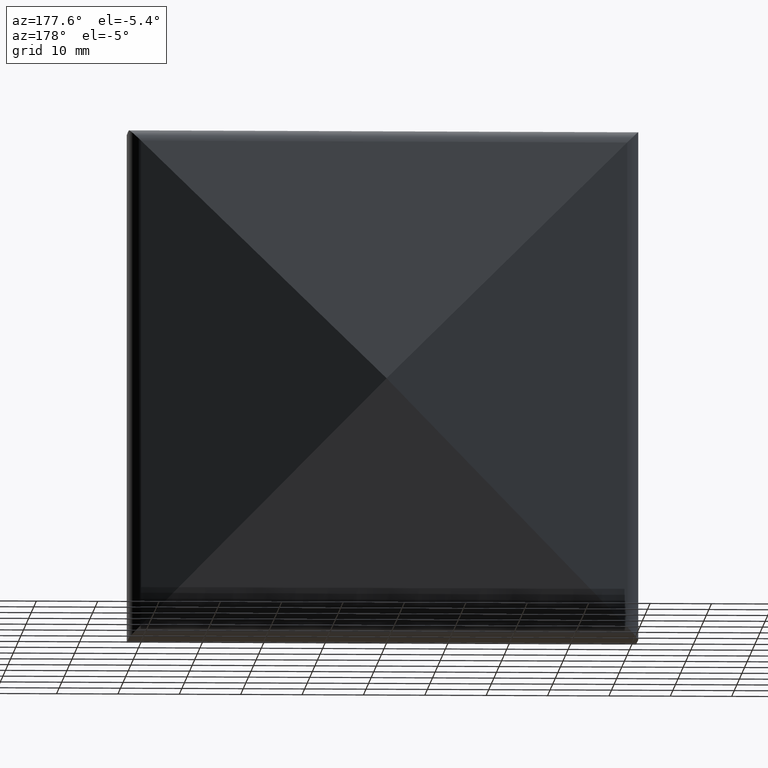
[diagram: clean part render]
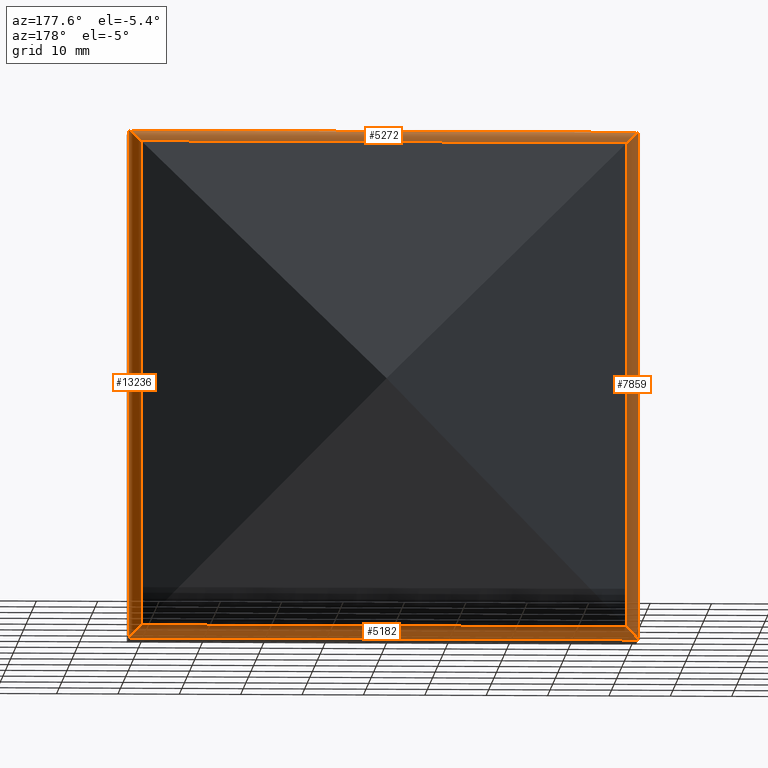
[diagram: same view with one multi-face feature highlighted, each face labeled with its STEP entity id]
A machine part, auxiliary view. The highlighted faces form ONE feature: a constant-radius fillet chain: 4 tangent blend faces with common blend radius 2.5 mm. The faces share edges in the B-rep.
Their STEP definitions:
[1] entity #5182 (Cylinder):
#521 = DIRECTION ( 'NONE',  ( 0.0000000000000000000, 0.0000000000000000000, -1.000000000000000000 ) ) ;
#549 = ORIENTED_EDGE ( 'NONE', *, *, #4330, .T. ) ;
#947 = EDGE_CURVE ( 'NONE', #13566, #11623, #1315, .T. ) ;
#1315 =( BOUNDED_CURVE ( )  B_SPLINE_CURVE ( 3, ( #9753, #7593, #10819, #10715 ),
 .UNSPECIFIED., .F., .F. ) 
 B_SPLINE_CURVE_WITH_KNOTS ( ( 4, 4 ),
 ( 3.141592653589793100, 4.475867618123492000 ),
 .UNSPECIFIED. ) 
 CURVE ( )  GEOMETRIC_REPRESENTATION_ITEM ( )  RATIONAL_B_SPLINE_CURVE ( ( 1.000000000000000000, 0.8570640236899820200, 0.8570640236899820200, 1.000000000000000000 ) ) 
 REPRESENTATION_ITEM ( '' )  );
#1970 = CARTESIAN_POINT ( 'NONE',  ( -41.50000000000004300, 10.46138374417017200, -39.58580565524131600 ) ) ;
#2084 = ORIENTED_EDGE ( 'NONE', *, *, #2369, .F. ) ;
#2224 = VERTEX_POINT ( 'NONE', #5475 ) ;
#2369 = EDGE_CURVE ( 'NONE', #13566, #3025, #10925, .T. ) ;
#2776 = CYLINDRICAL_SURFACE ( 'NONE', #7981, 2.500000000000002200 ) ;
#2825 = CARTESIAN_POINT ( 'NONE',  ( -39.58580565524133700, 10.46138374417017200, -39.58580565524131600 ) ) ;
#3025 = VERTEX_POINT ( 'NONE', #6599 ) ;
#4091 = CARTESIAN_POINT ( 'NONE',  ( 41.50000000000000000, 8.030986300481739400, -41.50000000000002100 ) ) ;
#4330 = EDGE_CURVE ( 'NONE', #2224, #3025, #9425, .T. ) ;
#4347 = EDGE_CURVE ( 'NONE', #11623, #2224, #6964, .T. ) ;
#5182 = ADVANCED_FACE ( 'NONE', ( #11964 ), #2776, .T. ) ;
#5287 = CARTESIAN_POINT ( 'NONE',  ( -41.50000000000004300, 8.030986300481739400, -41.49999999999997900 ) ) ;
#5475 = CARTESIAN_POINT ( 'NONE',  ( 39.58580565524141500, 10.46138374417017000, -39.58580565524135900 ) ) ;
#6307 = CARTESIAN_POINT ( 'NONE',  ( 39.58580565524141500, 10.46138374417017000, -39.58580565524135900 ) ) ;
#6599 = CARTESIAN_POINT ( 'NONE',  ( 41.50000000000000000, 8.030986300481739400, -41.50000000000002100 ) ) ;
#6884 = DIRECTION ( 'NONE',  ( 1.000000000000000000, -0.0000000000000000000, -4.440892098500625700E-016 ) ) ;
#6964 = LINE ( 'NONE', #1970, #13295 ) ;
#7226 = ORIENTED_EDGE ( 'NONE', *, *, #4347, .T. ) ;
#7593 = CARTESIAN_POINT ( 'NONE',  ( -41.50000000000001400, 9.234202017938352800, -41.49999999999997900 ) ) ;
#7981 = AXIS2_PLACEMENT_3D ( 'NONE', #13259, #6884, #521 ) ;
#9425 =( BOUNDED_CURVE ( )  B_SPLINE_CURVE ( 3, ( #6307, #9525, #11469, #4091 ),
 .UNSPECIFIED., .F., .F. ) 
 B_SPLINE_CURVE_WITH_KNOTS ( ( 4, 4 ),
 ( 1.807317689056111300, 3.141592653589793100 ),
 .UNSPECIFIED. ) 
 CURVE ( )  GEOMETRIC_REPRESENTATION_ITEM ( )  RATIONAL_B_SPLINE_CURVE ( ( 1.000000000000000000, 0.8570640236899855800, 0.8570640236899855800, 1.000000000000000000 ) ) 
 REPRESENTATION_ITEM ( '' )  );
#9525 = CARTESIAN_POINT ( 'NONE',  ( 40.75552261680627500, 10.17944351546561100, -40.75552261680629600 ) ) ;
#9753 = CARTESIAN_POINT ( 'NONE',  ( -41.50000000000004300, 8.030986300481739400, -41.49999999999997900 ) ) ;
#10552 = ORIENTED_EDGE ( 'NONE', *, *, #947, .T. ) ;
#10715 = CARTESIAN_POINT ( 'NONE',  ( -39.58580565524133700, 10.46138374417017200, -39.58580565524131600 ) ) ;
#10819 = CARTESIAN_POINT ( 'NONE',  ( -40.75552261680625300, 10.17944351546563600, -40.75552261680623900 ) ) ;
#10850 = CARTESIAN_POINT ( 'NONE',  ( -41.50000000000004300, 8.030986300481739400, -41.49999999999997900 ) ) ;
#10925 = LINE ( 'NONE', #5287, #11405 ) ;
#11405 = VECTOR ( 'NONE', #11754, 1000.000000000000000 ) ;
#11469 = CARTESIAN_POINT ( 'NONE',  ( 41.50000000000000000, 9.234202017938335100, -41.50000000000001400 ) ) ;
#11623 = VERTEX_POINT ( 'NONE', #2825 ) ;
#11714 = EDGE_LOOP ( 'NONE', ( #10552, #7226, #549, #2084 ) ) ;
#11754 = DIRECTION ( 'NONE',  ( 1.000000000000000000, -0.0000000000000000000, -4.440892098500625700E-016 ) ) ;
#11964 = FACE_OUTER_BOUND ( 'NONE', #11714, .T. ) ;
#13259 = CARTESIAN_POINT ( 'NONE',  ( -41.50000000000004300, 8.030986300481739400, -38.99999999999997900 ) ) ;
#13295 = VECTOR ( 'NONE', #13637, 1000.000000000000000 ) ;
#13566 = VERTEX_POINT ( 'NONE', #10850 ) ;
#13637 = DIRECTION ( 'NONE',  ( 1.000000000000000000, -0.0000000000000000000, -4.440892098500625700E-016 ) ) ;
[2] entity #13236 (Cylinder):
#480 = EDGE_CURVE ( 'NONE', #3025, #11215, #11634, .T. ) ;
#642 = VECTOR ( 'NONE', #12779, 1000.000000000000000 ) ;
#1642 = DIRECTION ( 'NONE',  ( 1.000000000000000000, 0.0000000000000000000, 0.0000000000000000000 ) ) ;
#1972 = ORIENTED_EDGE ( 'NONE', *, *, #9837, .T. ) ;
#2059 = ORIENTED_EDGE ( 'NONE', *, *, #6406, .F. ) ;
#2224 = VERTEX_POINT ( 'NONE', #5475 ) ;
#2243 = FACE_OUTER_BOUND ( 'NONE', #5586, .T. ) ;
#3025 = VERTEX_POINT ( 'NONE', #6599 ) ;
#3981 = AXIS2_PLACEMENT_3D ( 'NONE', #8007, #4739, #1642 ) ;
#4091 = CARTESIAN_POINT ( 'NONE',  ( 41.50000000000000000, 8.030986300481739400, -41.50000000000002100 ) ) ;
#4330 = EDGE_CURVE ( 'NONE', #2224, #3025, #9425, .T. ) ;
#4739 = DIRECTION ( 'NONE',  ( -0.0000000000000000000, -0.0000000000000000000, 1.000000000000000000 ) ) ;
#5075 = CARTESIAN_POINT ( 'NONE',  ( 40.75552261680626700, 10.17944351546562000, 40.75552261680625300 ) ) ;
#5125 = CARTESIAN_POINT ( 'NONE',  ( 41.50000000000000000, 9.234202017938340400, 41.49999999999997900 ) ) ;
#5475 = CARTESIAN_POINT ( 'NONE',  ( 39.58580565524141500, 10.46138374417017000, -39.58580565524135900 ) ) ;
#5586 = EDGE_LOOP ( 'NONE', ( #7374, #1972, #2059, #9256 ) ) ;
#5742 = CYLINDRICAL_SURFACE ( 'NONE', #3981, 2.500000000000002200 ) ;
#6002 = CARTESIAN_POINT ( 'NONE',  ( 39.58580565524138700, 10.46138374417017400, 39.58580565524133000 ) ) ;
#6307 = CARTESIAN_POINT ( 'NONE',  ( 39.58580565524141500, 10.46138374417017000, -39.58580565524135900 ) ) ;
#6406 = EDGE_CURVE ( 'NONE', #11215, #9751, #7683, .T. ) ;
#6599 = CARTESIAN_POINT ( 'NONE',  ( 41.50000000000000000, 8.030986300481739400, -41.50000000000002100 ) ) ;
#7374 = ORIENTED_EDGE ( 'NONE', *, *, #4330, .F. ) ;
#7683 =( BOUNDED_CURVE ( )  B_SPLINE_CURVE ( 3, ( #9283, #5125, #5075, #6002 ),
 .UNSPECIFIED., .F., .F. ) 
 B_SPLINE_CURVE_WITH_KNOTS ( ( 4, 4 ),
 ( 0.0000000000000000000, 1.334274964533686900 ),
 .UNSPECIFIED. ) 
 CURVE ( )  GEOMETRIC_REPRESENTATION_ITEM ( )  RATIONAL_B_SPLINE_CURVE ( ( 1.000000000000000000, 0.8570640236899845800, 0.8570640236899845800, 1.000000000000000000 ) ) 
 REPRESENTATION_ITEM ( '' )  );
#8007 = CARTESIAN_POINT ( 'NONE',  ( 39.00000000000000000, 8.030986300481739400, -41.49999999999999300 ) ) ;
#9256 = ORIENTED_EDGE ( 'NONE', *, *, #480, .F. ) ;
#9283 = CARTESIAN_POINT ( 'NONE',  ( 41.50000000000001400, 8.030986300481739400, 41.49999999999997200 ) ) ;
#9425 =( BOUNDED_CURVE ( )  B_SPLINE_CURVE ( 3, ( #6307, #9525, #11469, #4091 ),
 .UNSPECIFIED., .F., .F. ) 
 B_SPLINE_CURVE_WITH_KNOTS ( ( 4, 4 ),
 ( 1.807317689056111300, 3.141592653589793100 ),
 .UNSPECIFIED. ) 
 CURVE ( )  GEOMETRIC_REPRESENTATION_ITEM ( )  RATIONAL_B_SPLINE_CURVE ( ( 1.000000000000000000, 0.8570640236899855800, 0.8570640236899855800, 1.000000000000000000 ) ) 
 REPRESENTATION_ITEM ( '' )  );
#9525 = CARTESIAN_POINT ( 'NONE',  ( 40.75552261680627500, 10.17944351546561100, -40.75552261680629600 ) ) ;
#9751 = VERTEX_POINT ( 'NONE', #12059 ) ;
#9837 = EDGE_CURVE ( 'NONE', #2224, #9751, #12709, .T. ) ;
#10683 = CARTESIAN_POINT ( 'NONE',  ( 39.58580565524134400, 10.46138374417017400, -41.49999999999999300 ) ) ;
#10734 = VECTOR ( 'NONE', #10830, 1000.000000000000000 ) ;
#10830 = DIRECTION ( 'NONE',  ( -0.0000000000000000000, -0.0000000000000000000, 1.000000000000000000 ) ) ;
#10899 = CARTESIAN_POINT ( 'NONE',  ( 41.50000000000001400, 8.030986300481739400, 41.49999999999997200 ) ) ;
#11215 = VERTEX_POINT ( 'NONE', #10899 ) ;
#11469 = CARTESIAN_POINT ( 'NONE',  ( 41.50000000000000000, 9.234202017938335100, -41.50000000000001400 ) ) ;
#11634 = LINE ( 'NONE', #11832, #642 ) ;
#11832 = CARTESIAN_POINT ( 'NONE',  ( 41.49999999999999300, 8.030986300481739400, -41.49999999999999300 ) ) ;
#12059 = CARTESIAN_POINT ( 'NONE',  ( 39.58580565524138700, 10.46138374417017400, 39.58580565524133000 ) ) ;
#12709 = LINE ( 'NONE', #10683, #10734 ) ;
#12779 = DIRECTION ( 'NONE',  ( -0.0000000000000000000, -0.0000000000000000000, 1.000000000000000000 ) ) ;
#13236 = ADVANCED_FACE ( 'NONE', ( #2243 ), #5742, .T. ) ;
[3] entity #5272 (Cylinder):
#325 = CARTESIAN_POINT ( 'NONE',  ( -41.50000000000000000, 9.234202017938349300, 41.50000000000001400 ) ) ;
#595 = EDGE_CURVE ( 'NONE', #2424, #11215, #802, .T. ) ;
#802 = LINE ( 'NONE', #10770, #3446 ) ;
#987 = FACE_OUTER_BOUND ( 'NONE', #12617, .T. ) ;
#1775 = DIRECTION ( 'NONE',  ( 1.000000000000000000, -0.0000000000000000000, -4.440892098500625700E-016 ) ) ;
#1980 =( BOUNDED_CURVE ( )  B_SPLINE_CURVE ( 3, ( #2377, #9910, #325, #10870 ),
 .UNSPECIFIED., .F., .F. ) 
 B_SPLINE_CURVE_WITH_KNOTS ( ( 4, 4 ),
 ( 4.948910342645890000, 6.283185307179586200 ),
 .UNSPECIFIED. ) 
 CURVE ( )  GEOMETRIC_REPRESENTATION_ITEM ( )  RATIONAL_B_SPLINE_CURVE ( ( 1.000000000000000000, 0.8570640236899826900, 0.8570640236899826900, 1.000000000000000000 ) ) 
 REPRESENTATION_ITEM ( '' )  );
#2235 = EDGE_CURVE ( 'NONE', #3667, #2424, #1980, .T. ) ;
#2377 = CARTESIAN_POINT ( 'NONE',  ( -39.58580565524133700, 10.46138374417017400, 39.58580565524136600 ) ) ;
#2424 = VERTEX_POINT ( 'NONE', #13790 ) ;
#3446 = VECTOR ( 'NONE', #8705, 1000.000000000000000 ) ;
#3667 = VERTEX_POINT ( 'NONE', #10227 ) ;
#3752 = CARTESIAN_POINT ( 'NONE',  ( -41.50000000000002800, 10.46138374417017400, 39.58580565524136600 ) ) ;
#4721 = VECTOR ( 'NONE', #4825, 1000.000000000000000 ) ;
#4825 = DIRECTION ( 'NONE',  ( 1.000000000000000000, -0.0000000000000000000, -4.440892098500625700E-016 ) ) ;
#5075 = CARTESIAN_POINT ( 'NONE',  ( 40.75552261680626700, 10.17944351546562000, 40.75552261680625300 ) ) ;
#5125 = CARTESIAN_POINT ( 'NONE',  ( 41.50000000000000000, 9.234202017938340400, 41.49999999999997900 ) ) ;
#5135 = CYLINDRICAL_SURFACE ( 'NONE', #5764, 2.500000000000002200 ) ;
#5272 = ADVANCED_FACE ( 'NONE', ( #987 ), #5135, .T. ) ;
#5585 = ORIENTED_EDGE ( 'NONE', *, *, #6406, .T. ) ;
#5764 = AXIS2_PLACEMENT_3D ( 'NONE', #8135, #1775, #8217 ) ;
#6002 = CARTESIAN_POINT ( 'NONE',  ( 39.58580565524138700, 10.46138374417017400, 39.58580565524133000 ) ) ;
#6293 = ORIENTED_EDGE ( 'NONE', *, *, #2235, .T. ) ;
#6406 = EDGE_CURVE ( 'NONE', #11215, #9751, #7683, .T. ) ;
#7362 = ORIENTED_EDGE ( 'NONE', *, *, #595, .T. ) ;
#7683 =( BOUNDED_CURVE ( )  B_SPLINE_CURVE ( 3, ( #9283, #5125, #5075, #6002 ),
 .UNSPECIFIED., .F., .F. ) 
 B_SPLINE_CURVE_WITH_KNOTS ( ( 4, 4 ),
 ( 0.0000000000000000000, 1.334274964533686900 ),
 .UNSPECIFIED. ) 
 CURVE ( )  GEOMETRIC_REPRESENTATION_ITEM ( )  RATIONAL_B_SPLINE_CURVE ( ( 1.000000000000000000, 0.8570640236899845800, 0.8570640236899845800, 1.000000000000000000 ) ) 
 REPRESENTATION_ITEM ( '' )  );
#8135 = CARTESIAN_POINT ( 'NONE',  ( -41.50000000000002800, 8.030986300481739400, 39.00000000000002100 ) ) ;
#8217 = DIRECTION ( 'NONE',  ( 0.0000000000000000000, 0.0000000000000000000, -1.000000000000000000 ) ) ;
#8281 = ORIENTED_EDGE ( 'NONE', *, *, #13260, .F. ) ;
#8705 = DIRECTION ( 'NONE',  ( 1.000000000000000000, -0.0000000000000000000, -4.440892098500625700E-016 ) ) ;
#9072 = LINE ( 'NONE', #3752, #4721 ) ;
#9283 = CARTESIAN_POINT ( 'NONE',  ( 41.50000000000001400, 8.030986300481739400, 41.49999999999997200 ) ) ;
#9751 = VERTEX_POINT ( 'NONE', #12059 ) ;
#9910 = CARTESIAN_POINT ( 'NONE',  ( -40.75552261680624600, 10.17944351546563200, 40.75552261680627500 ) ) ;
#10227 = CARTESIAN_POINT ( 'NONE',  ( -39.58580565524133700, 10.46138374417017400, 39.58580565524136600 ) ) ;
#10770 = CARTESIAN_POINT ( 'NONE',  ( -41.50000000000002800, 8.030986300481739400, 41.50000000000001400 ) ) ;
#10870 = CARTESIAN_POINT ( 'NONE',  ( -41.50000000000002800, 8.030986300481739400, 41.50000000000001400 ) ) ;
#10899 = CARTESIAN_POINT ( 'NONE',  ( 41.50000000000001400, 8.030986300481739400, 41.49999999999997200 ) ) ;
#11215 = VERTEX_POINT ( 'NONE', #10899 ) ;
#12059 = CARTESIAN_POINT ( 'NONE',  ( 39.58580565524138700, 10.46138374417017400, 39.58580565524133000 ) ) ;
#12617 = EDGE_LOOP ( 'NONE', ( #6293, #7362, #5585, #8281 ) ) ;
#13260 = EDGE_CURVE ( 'NONE', #3667, #9751, #9072, .T. ) ;
#13790 = CARTESIAN_POINT ( 'NONE',  ( -41.50000000000002800, 8.030986300481739400, 41.50000000000001400 ) ) ;
[4] entity #7859 (Cylinder):
#47 = CARTESIAN_POINT ( 'NONE',  ( -39.00000000000000000, 8.030986300481739400, -41.49999999999999300 ) ) ;
#325 = CARTESIAN_POINT ( 'NONE',  ( -41.50000000000000000, 9.234202017938349300, 41.50000000000001400 ) ) ;
#947 = EDGE_CURVE ( 'NONE', #13566, #11623, #1315, .T. ) ;
#1315 =( BOUNDED_CURVE ( )  B_SPLINE_CURVE ( 3, ( #9753, #7593, #10819, #10715 ),
 .UNSPECIFIED., .F., .F. ) 
 B_SPLINE_CURVE_WITH_KNOTS ( ( 4, 4 ),
 ( 3.141592653589793100, 4.475867618123492000 ),
 .UNSPECIFIED. ) 
 CURVE ( )  GEOMETRIC_REPRESENTATION_ITEM ( )  RATIONAL_B_SPLINE_CURVE ( ( 1.000000000000000000, 0.8570640236899820200, 0.8570640236899820200, 1.000000000000000000 ) ) 
 REPRESENTATION_ITEM ( '' )  );
#1980 =( BOUNDED_CURVE ( )  B_SPLINE_CURVE ( 3, ( #2377, #9910, #325, #10870 ),
 .UNSPECIFIED., .F., .F. ) 
 B_SPLINE_CURVE_WITH_KNOTS ( ( 4, 4 ),
 ( 4.948910342645890000, 6.283185307179586200 ),
 .UNSPECIFIED. ) 
 CURVE ( )  GEOMETRIC_REPRESENTATION_ITEM ( )  RATIONAL_B_SPLINE_CURVE ( ( 1.000000000000000000, 0.8570640236899826900, 0.8570640236899826900, 1.000000000000000000 ) ) 
 REPRESENTATION_ITEM ( '' )  );
#2189 = DIRECTION ( 'NONE',  ( -0.0000000000000000000, -0.0000000000000000000, 1.000000000000000000 ) ) ;
#2235 = EDGE_CURVE ( 'NONE', #3667, #2424, #1980, .T. ) ;
#2377 = CARTESIAN_POINT ( 'NONE',  ( -39.58580565524133700, 10.46138374417017400, 39.58580565524136600 ) ) ;
#2424 = VERTEX_POINT ( 'NONE', #13790 ) ;
#2825 = CARTESIAN_POINT ( 'NONE',  ( -39.58580565524133700, 10.46138374417017200, -39.58580565524131600 ) ) ;
#3120 = EDGE_CURVE ( 'NONE', #13566, #2424, #9762, .T. ) ;
#3240 = EDGE_CURVE ( 'NONE', #11623, #3667, #11569, .T. ) ;
#3522 = ORIENTED_EDGE ( 'NONE', *, *, #3240, .F. ) ;
#3667 = VERTEX_POINT ( 'NONE', #10227 ) ;
#5596 = CARTESIAN_POINT ( 'NONE',  ( -39.58580565524133700, 10.46138374417017200, -41.49999999999999300 ) ) ;
#6363 = ORIENTED_EDGE ( 'NONE', *, *, #2235, .F. ) ;
#6564 = DIRECTION ( 'NONE',  ( -0.0000000000000000000, -0.0000000000000000000, 1.000000000000000000 ) ) ;
#6573 = VECTOR ( 'NONE', #2189, 1000.000000000000000 ) ;
#6604 = ORIENTED_EDGE ( 'NONE', *, *, #3120, .T. ) ;
#7215 = EDGE_LOOP ( 'NONE', ( #7230, #6604, #6363, #3522 ) ) ;
#7230 = ORIENTED_EDGE ( 'NONE', *, *, #947, .F. ) ;
#7593 = CARTESIAN_POINT ( 'NONE',  ( -41.50000000000001400, 9.234202017938352800, -41.49999999999997900 ) ) ;
#7859 = ADVANCED_FACE ( 'NONE', ( #8935 ), #9455, .T. ) ;
#8393 = VECTOR ( 'NONE', #6564, 1000.000000000000000 ) ;
#8935 = FACE_OUTER_BOUND ( 'NONE', #7215, .T. ) ;
#9455 = CYLINDRICAL_SURFACE ( 'NONE', #11203, 2.500000000000002200 ) ;
#9649 = DIRECTION ( 'NONE',  ( -0.0000000000000000000, -0.0000000000000000000, 1.000000000000000000 ) ) ;
#9705 = CARTESIAN_POINT ( 'NONE',  ( -41.50000000000000000, 8.030986300481739400, -41.49999999999999300 ) ) ;
#9753 = CARTESIAN_POINT ( 'NONE',  ( -41.50000000000004300, 8.030986300481739400, -41.49999999999997900 ) ) ;
#9762 = LINE ( 'NONE', #9705, #6573 ) ;
#9910 = CARTESIAN_POINT ( 'NONE',  ( -40.75552261680624600, 10.17944351546563200, 40.75552261680627500 ) ) ;
#10227 = CARTESIAN_POINT ( 'NONE',  ( -39.58580565524133700, 10.46138374417017400, 39.58580565524136600 ) ) ;
#10715 = CARTESIAN_POINT ( 'NONE',  ( -39.58580565524133700, 10.46138374417017200, -39.58580565524131600 ) ) ;
#10819 = CARTESIAN_POINT ( 'NONE',  ( -40.75552261680625300, 10.17944351546563600, -40.75552261680623900 ) ) ;
#10850 = CARTESIAN_POINT ( 'NONE',  ( -41.50000000000004300, 8.030986300481739400, -41.49999999999997900 ) ) ;
#10870 = CARTESIAN_POINT ( 'NONE',  ( -41.50000000000002800, 8.030986300481739400, 41.50000000000001400 ) ) ;
#11203 = AXIS2_PLACEMENT_3D ( 'NONE', #47, #9649, #11951 ) ;
#11569 = LINE ( 'NONE', #5596, #8393 ) ;
#11623 = VERTEX_POINT ( 'NONE', #2825 ) ;
#11951 = DIRECTION ( 'NONE',  ( 1.000000000000000000, 0.0000000000000000000, 0.0000000000000000000 ) ) ;
#13566 = VERTEX_POINT ( 'NONE', #10850 ) ;
#13790 = CARTESIAN_POINT ( 'NONE',  ( -41.50000000000002800, 8.030986300481739400, 41.50000000000001400 ) ) ;